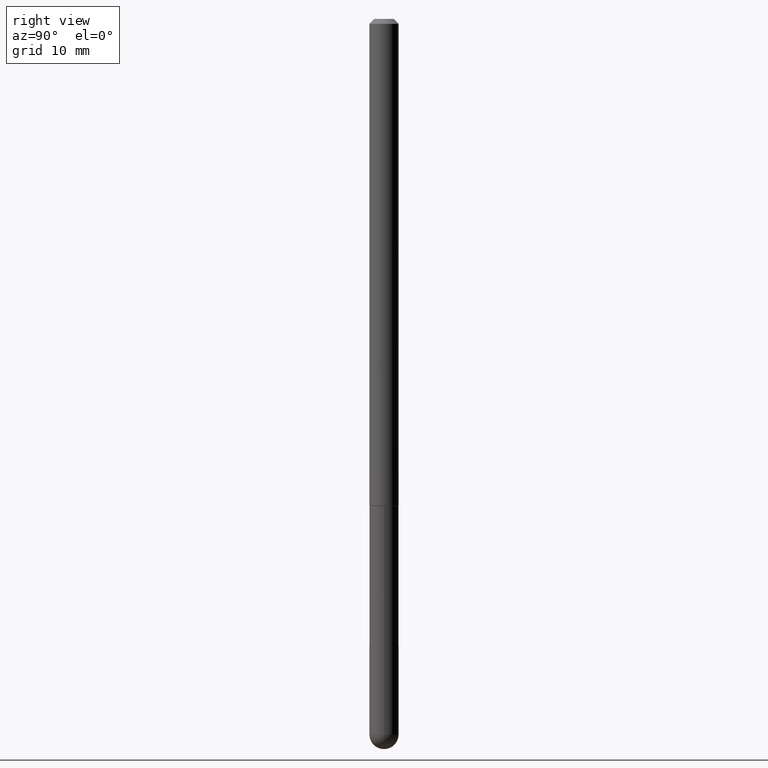
[diagram: clean part render]
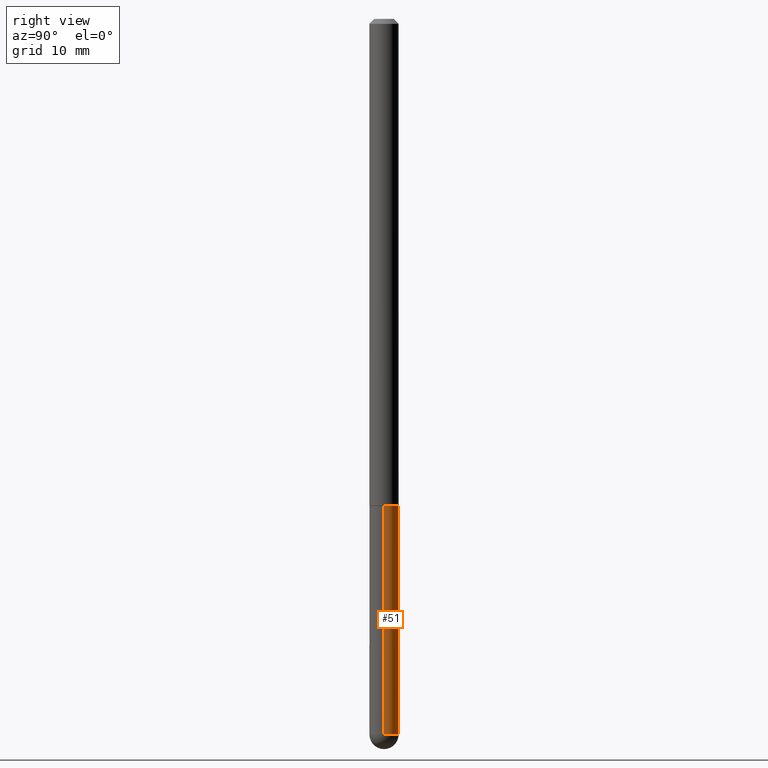
[diagram: same view with one face highlighted and labeled with its STEP entity id]
A machine part, right view. The second image highlights one B-rep face of the part: STEP entity #51.
In plain terms, the highlighted cylindrical surface (edge-blend (fillet) strip) has radius 1.4999 mm, axis along (-0, 0, 1).
Its self-contained STEP definition (entity closure, byte-faithful):
#3 = CIRCLE ( 'NONE', #245, 0.05905000000000001914 ) ;
#15 = LINE ( 'NONE', #180, #33 ) ;
#21 = LINE ( 'NONE', #116, #403 ) ;
#22 = CIRCLE ( 'NONE', #361, 0.05905000000000001914 ) ;
#26 = DIRECTION ( 'NONE',  ( 1.000000000000000000, -6.982962677686270655E-15, 0.000000000000000000 ) ) ;
#32 = VERTEX_POINT ( 'NONE', #236 ) ;
#33 = VECTOR ( 'NONE', #179, 39.37007874015748143 ) ;
#51 = ADVANCED_FACE ( 'NONE', ( #107 ), #366, .T. ) ;
#55 = CARTESIAN_POINT ( 'NONE',  ( 7.076575357898237682E-29, -1.010347412427735067E-14, -2.893749999999999822 ) ) ;
#61 = CARTESIAN_POINT ( 'NONE',  ( 4.123439461174440441E-16, 0.05904999999998979815, -2.893749999999999822 ) ) ;
#80 = DIRECTION ( 'NONE',  ( 1.000000000000000000, -6.982962677686266711E-15, 4.876176775795935793E-29 ) ) ;
#96 = DIRECTION ( 'NONE',  ( -2.445468806185136597E-29, 3.491481338843145583E-15, 1.000000000000000000 ) ) ;
#107 = FACE_OUTER_BOUND ( 'NONE', #137, .T. ) ;
#116 = CARTESIAN_POINT ( 'NONE',  ( -0.05905000000000001914, 4.195754854663392958E-16, -2.904631170795522943E-30 ) ) ;
#128 = CARTESIAN_POINT ( 'NONE',  ( 0.05905000000000001914, -7.285324961630105839E-15, -1.968499999999999694 ) ) ;
#129 = ORIENTED_EDGE ( 'NONE', *, *, #148, .T. ) ;
#137 = EDGE_LOOP ( 'NONE', ( #154, #129, #143, #331, #284 ) ) ;
#143 = ORIENTED_EDGE ( 'NONE', *, *, #371, .F. ) ;
#148 = EDGE_CURVE ( 'NONE', #354, #316, #21, .T. ) ;
#154 = ORIENTED_EDGE ( 'NONE', *, *, #338, .T. ) ;
#179 = DIRECTION ( 'NONE',  ( -2.445468806185136877E-29, 3.491481338843145188E-15, 1.000000000000000000 ) ) ;
#180 = CARTESIAN_POINT ( 'NONE',  ( 0.05905000000000001914, -4.123439461173741806E-16, 2.879382386107500921E-30 ) ) ;
#186 = CARTESIAN_POINT ( 'NONE',  ( -0.05905000000000001914, -8.068652084428701697E-15, -1.968499999999999694 ) ) ;
#193 = EDGE_CURVE ( 'NONE', #32, #320, #3, .T. ) ;
#200 = AXIS2_PLACEMENT_3D ( 'NONE', #244, #393, #80 ) ;
#212 = CARTESIAN_POINT ( 'NONE',  ( 7.076575357898237682E-29, -1.010347412427735067E-14, -2.893749999999999822 ) ) ;
#226 = EDGE_CURVE ( 'NONE', #32, #256, #15, .T. ) ;
#227 = CARTESIAN_POINT ( 'NONE',  ( -0.05905000000000001914, -8.068652084428701697E-15, -2.893749999999999822 ) ) ;
#228 = CARTESIAN_POINT ( 'NONE',  ( 4.813905344975440714E-29, -6.872981015512730918E-15, -1.968499999999999694 ) ) ;
#236 = CARTESIAN_POINT ( 'NONE',  ( 0.05905000000000001914, -8.900571516012416899E-15, -2.893749999999999822 ) ) ;
#244 = CARTESIAN_POINT ( 'NONE',  ( 0.000000000000000000, 0.000000000000000000, 0.000000000000000000 ) ) ;
#245 = AXIS2_PLACEMENT_3D ( 'NONE', #212, #341, #282 ) ;
#252 = DIRECTION ( 'NONE',  ( 1.000000000000000000, -6.982962677686270655E-15, 0.000000000000000000 ) ) ;
#256 = VERTEX_POINT ( 'NONE', #128 ) ;
#282 = DIRECTION ( 'NONE',  ( 1.000000000000000000, -6.982962677686270655E-15, 0.000000000000000000 ) ) ;
#284 = ORIENTED_EDGE ( 'NONE', *, *, #193, .T. ) ;
#291 = DIRECTION ( 'NONE',  ( -2.445468806185136597E-29, 3.491481338843145583E-15, 1.000000000000000000 ) ) ;
#310 = DIRECTION ( 'NONE',  ( -2.445468806185136877E-29, 3.491481338843145188E-15, 1.000000000000000000 ) ) ;
#316 = VERTEX_POINT ( 'NONE', #186 ) ;
#320 = VERTEX_POINT ( 'NONE', #61 ) ;
#331 = ORIENTED_EDGE ( 'NONE', *, *, #226, .F. ) ;
#334 = AXIS2_PLACEMENT_3D ( 'NONE', #55, #96, #26 ) ;
#338 = EDGE_CURVE ( 'NONE', #320, #354, #398, .T. ) ;
#341 = DIRECTION ( 'NONE',  ( -2.445468806185136597E-29, 3.491481338843145583E-15, 1.000000000000000000 ) ) ;
#354 = VERTEX_POINT ( 'NONE', #227 ) ;
#361 = AXIS2_PLACEMENT_3D ( 'NONE', #228, #291, #252 ) ;
#366 = CYLINDRICAL_SURFACE ( 'NONE', #200, 0.05905000000000001914 ) ;
#371 = EDGE_CURVE ( 'NONE', #256, #316, #22, .T. ) ;
#393 = DIRECTION ( 'NONE',  ( -2.445468806185136597E-29, 3.491481338843145583E-15, 1.000000000000000000 ) ) ;
#398 = CIRCLE ( 'NONE', #334, 0.05905000000000001914 ) ;
#403 = VECTOR ( 'NONE', #310, 39.37007874015748143 ) ;